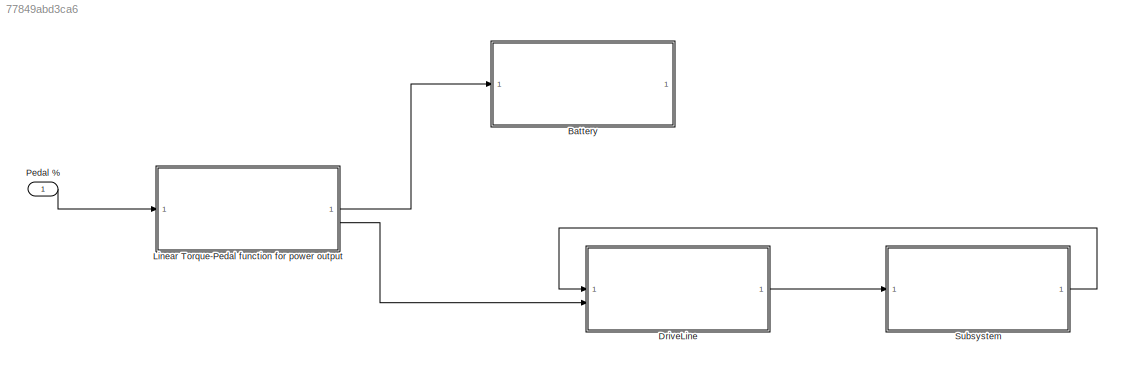
MODEL slx_77849abd3ca6
KIND model
CONFIG AbsTol = auto
CONFIG EnableMultiTasking = off
CONFIG FixedStep = auto
CONFIG MaxStep = auto
CONFIG MinStep = auto
CONFIG RelTol = 1e-3
CONFIG SampleTimeConstraint = Unconstrained
CONFIG SolverName = VariableStepAuto
CONFIG StartTime = 0.0
CONFIG StopTime = 10.0
WORKSPACE source: mxarray member
WORKSPACE AccessoryLoad = 10
WORKSPACE AerodynamicDrag = 10
WORKSPACE DriveLineModel = 10
WORKSPACE FiGain = 10
WORKSPACE GradeForce = 10
WORKSPACE K = 10
WORKSPACE Kc: Simulink.Parameter (value not decoded)
WORKSPACE RollingResistance = 10
WORKSPACE interalResistance = 2000
WORKSPACE mps2kph = 3.6
WORKSPACE openCircuitVoltage = 560
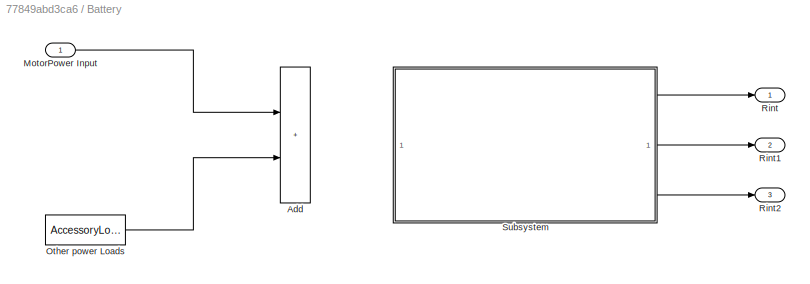
BLOCK [SubSystem] Battery
BLOCK [Sum] Battery/Add
  IconShape = rectangular
BLOCK [Inport] Battery/MotorPower Input
BLOCK [Constant] Battery/Other power Loads
  Value = AccessoryLoad
BLOCK [Outport] Battery/Rint
BLOCK [Outport] Battery/Rint1
  Port = 2
BLOCK [Outport] Battery/Rint2
  Port = 3
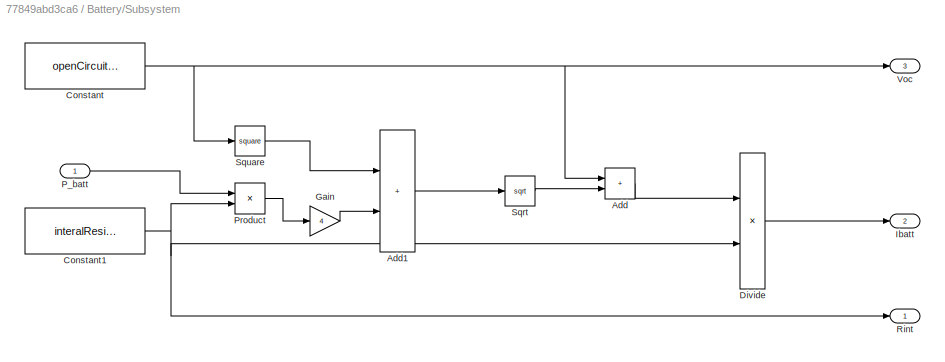
BLOCK [SubSystem] Battery/Subsystem
BLOCK [Sum] Battery/Subsystem/Add
  IconShape = rectangular
BLOCK [Sum] Battery/Subsystem/Add1
  IconShape = rectangular
BLOCK [Constant] Battery/Subsystem/Constant
  Value = openCircuitVoltage
BLOCK [Constant] Battery/Subsystem/Constant1
  Value = interalResistance
BLOCK [Product] Battery/Subsystem/Divide
  Inputs = */
BLOCK [Gain] Battery/Subsystem/Gain
  Gain = 4
BLOCK [Outport] Battery/Subsystem/Ibatt
  Port = 2
BLOCK [Inport] Battery/Subsystem/P_batt
BLOCK [Product] Battery/Subsystem/Product
BLOCK [Outport] Battery/Subsystem/Rint
BLOCK [Sqrt] Battery/Subsystem/Sqrt
BLOCK [Math] Battery/Subsystem/Square
  Operator = square
BLOCK [Outport] Battery/Subsystem/Voc
  Port = 3
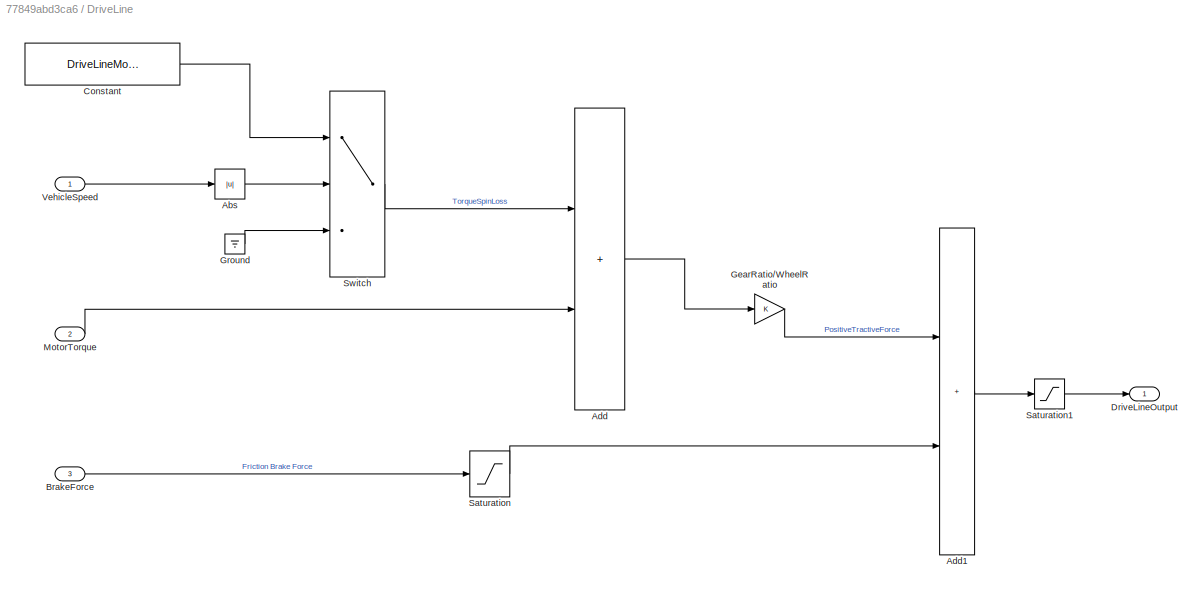
BLOCK [SubSystem] DriveLine
BLOCK [Abs] DriveLine/Abs
  SaturateOnIntegerOverflow = off
BLOCK [Sum] DriveLine/Add
  IconShape = rectangular
BLOCK [Sum] DriveLine/Add1
  IconShape = rectangular
BLOCK [Inport] DriveLine/BrakeForce
  Port = 3
BLOCK [Constant] DriveLine/Constant
  Value = DriveLineModel.SpinLoss
BLOCK [Outport] DriveLine/DriveLineOutput
BLOCK [Gain] DriveLine/GearRatio//WheelRatio
  Gain = K
BLOCK [Ground] DriveLine/Ground
BLOCK [Inport] DriveLine/MotorTorque
  Port = 2
BLOCK [Saturate] DriveLine/Saturation
BLOCK [Saturate] DriveLine/Saturation1
BLOCK [Switch] DriveLine/Switch
  Criteria = u2 ~= 0
  InputSameDT = off
  SaturateOnIntegerOverflow = off
BLOCK [Inport] DriveLine/VehicleSpeed
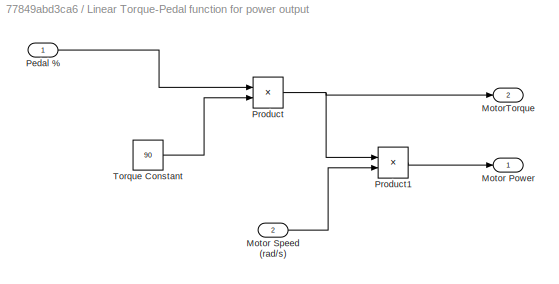
BLOCK [SubSystem] Linear Torque-Pedal function for power output
BLOCK [Outport] Linear Torque-Pedal function for power output/Motor Power
BLOCK [Inport] Linear Torque-Pedal function for power output/Motor Speed (rad//s)
  Port = 2
BLOCK [Outport] Linear Torque-Pedal function for power output/MotorTorque
  Port = 2
BLOCK [Inport] Linear Torque-Pedal function for power output/Pedal  %
  OutMax = 1
  OutMin = 0
BLOCK [Product] Linear Torque-Pedal function for power output/Product
BLOCK [Product] Linear Torque-Pedal function for power output/Product1
BLOCK [Constant] Linear Torque-Pedal function for power output/Torque Constant
  Value = 90
BLOCK [Inport] Pedal  %
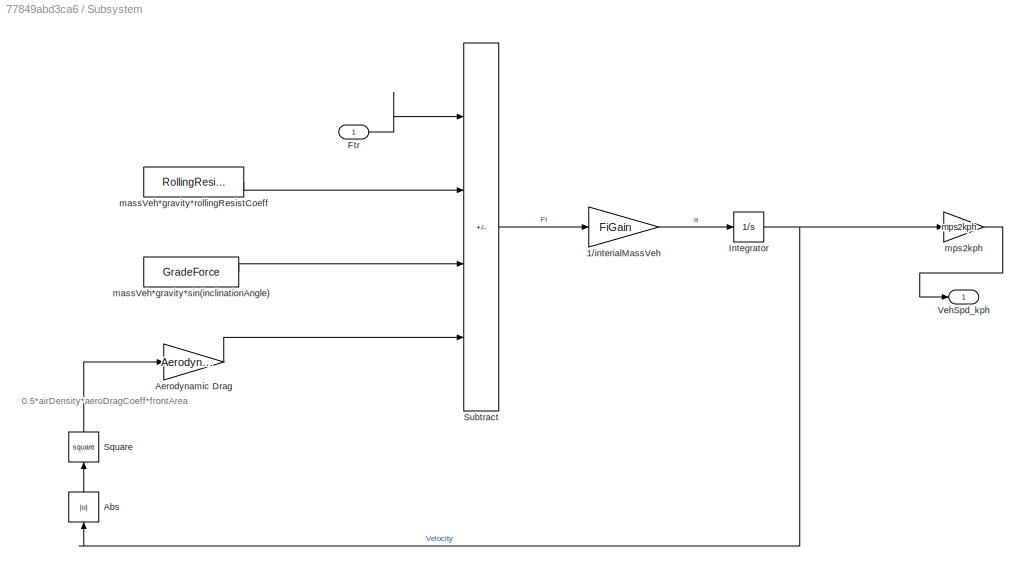
BLOCK [SubSystem] Subsystem
BLOCK [Gain] Subsystem/1//interialMassVeh
  Gain = FiGain
BLOCK [Abs] Subsystem/Abs
  NameLocation = right
  SaturateOnIntegerOverflow = off
BLOCK [Gain] Subsystem/Aerodynamic Drag
  Gain = AerodynamicDrag
BLOCK [Inport] Subsystem/Ftr
BLOCK [Integrator] Subsystem/Integrator
BLOCK [Math] Subsystem/Square
  NameLocation = right
  Operator = square
BLOCK [Sum] Subsystem/Subtract
  IconShape = rectangular
  Inputs = +---
BLOCK [Outport] Subsystem/VehSpd_kph
BLOCK [Constant] Subsystem/massVeh*gravity*rollingResistCoeff
  Value = RollingResistance
BLOCK [Constant] Subsystem/massVeh*gravity*sin(inclinationAngle)
  Value = GradeForce
BLOCK [Gain] Subsystem/mps2kph
  Gain = mps2kph
ANNOTATION Subsystem: 0.5*airDensity*aeroDragCoeff*frontArea
LINE Battery/MotorPower Input:1 -> Battery/Add:1
LINE Battery/Other power Loads:1 -> Battery/Add:2
LINE Battery/Subsystem/Add1:1 -> Battery/Subsystem/Sqrt:1
LINE Battery/Subsystem/Add:1 -> Battery/Subsystem/Divide:1
NET Battery/Subsystem/Constant1:1 -> Battery/Subsystem/Divide:2, Battery/Subsystem/Product:2, Battery/Subsystem/Rint:1
NET Battery/Subsystem/Constant:1 -> Battery/Subsystem/Add:1, Battery/Subsystem/Square:1, Battery/Subsystem/Voc:1
LINE Battery/Subsystem/Divide:1 -> Battery/Subsystem/Ibatt:1
LINE Battery/Subsystem/Gain:1 -> Battery/Subsystem/Add1:2
LINE Battery/Subsystem/P_batt:1 -> Battery/Subsystem/Product:1
LINE Battery/Subsystem/Product:1 -> Battery/Subsystem/Gain:1
LINE Battery/Subsystem/Sqrt:1 -> Battery/Subsystem/Add:2
LINE Battery/Subsystem/Square:1 -> Battery/Subsystem/Add1:1
LINE Battery/Subsystem:1 -> Battery/Rint:1
LINE Battery/Subsystem:2 -> Battery/Rint1:1
LINE Battery/Subsystem:3 -> Battery/Rint2:1
LINE DriveLine/Abs:1 -> DriveLine/Switch:2
LINE DriveLine/Add1:1 -> DriveLine/Saturation1:1
LINE DriveLine/Add:1 -> DriveLine/GearRatio//WheelRatio:1
LINE DriveLine/BrakeForce:1 -> DriveLine/Saturation:1
LINE DriveLine/Constant:1 -> DriveLine/Switch:1
LINE DriveLine/GearRatio//WheelRatio:1 -> DriveLine/Add1:1
LINE DriveLine/Ground:1 -> DriveLine/Switch:3
LINE DriveLine/MotorTorque:1 -> DriveLine/Add:2
LINE DriveLine/Saturation1:1 -> DriveLine/DriveLineOutput:1
LINE DriveLine/Saturation:1 -> DriveLine/Add1:2
LINE DriveLine/Switch:1 -> DriveLine/Add:1
LINE DriveLine/VehicleSpeed:1 -> DriveLine/Abs:1
LINE DriveLine:1 -> Subsystem:1
LINE Linear Torque-Pedal function for power output/Motor Speed (rad//s):1 -> Linear Torque-Pedal function for power output/Product1:2
LINE Linear Torque-Pedal function for power output/Pedal  %:1 -> Linear Torque-Pedal function for power output/Product:1
LINE Linear Torque-Pedal function for power output/Product1:1 -> Linear Torque-Pedal function for power output/Motor Power:1
NET Linear Torque-Pedal function for power output/Product:1 -> Linear Torque-Pedal function for power output/MotorTorque:1, Linear Torque-Pedal function for power output/Product1:1
LINE Linear Torque-Pedal function for power output/Torque Constant:1 -> Linear Torque-Pedal function for power output/Product:2
LINE Linear Torque-Pedal function for power output:1 -> Battery:1
LINE Linear Torque-Pedal function for power output:2 -> DriveLine:2
LINE Pedal  %:1 -> Linear Torque-Pedal function for power output:1
LINE Subsystem/1//interialMassVeh:1 -> Subsystem/Integrator:1
LINE Subsystem/Abs:1 -> Subsystem/Square:1
LINE Subsystem/Aerodynamic Drag:1 -> Subsystem/Subtract:4
LINE Subsystem/Ftr:1 -> Subsystem/Subtract:1
NET Subsystem/Integrator:1 -> Subsystem/Abs:1, Subsystem/mps2kph:1
LINE Subsystem/Square:1 -> Subsystem/Aerodynamic Drag:1
LINE Subsystem/Subtract:1 -> Subsystem/1//interialMassVeh:1
LINE Subsystem/massVeh*gravity*rollingResistCoeff:1 -> Subsystem/Subtract:2
LINE Subsystem/massVeh*gravity*sin(inclinationAngle):1 -> Subsystem/Subtract:3
LINE Subsystem/mps2kph:1 -> Subsystem/VehSpd_kph:1
LINE Subsystem:1 -> DriveLine:1
note: NET lines group one-source signal fan-out (src -> all destinations, sorted); 1:1 wires keep LINE
